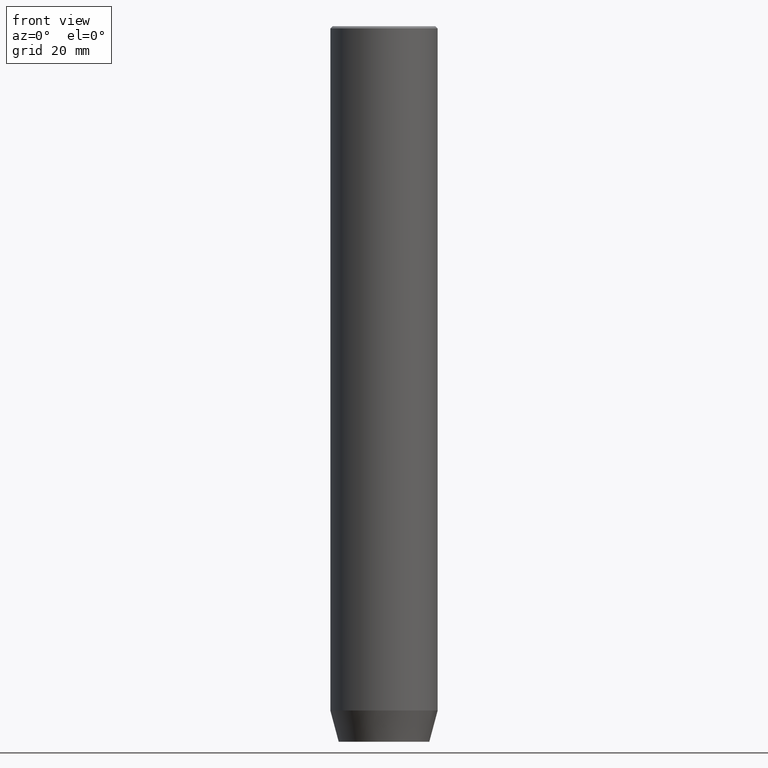
[diagram: clean part render]
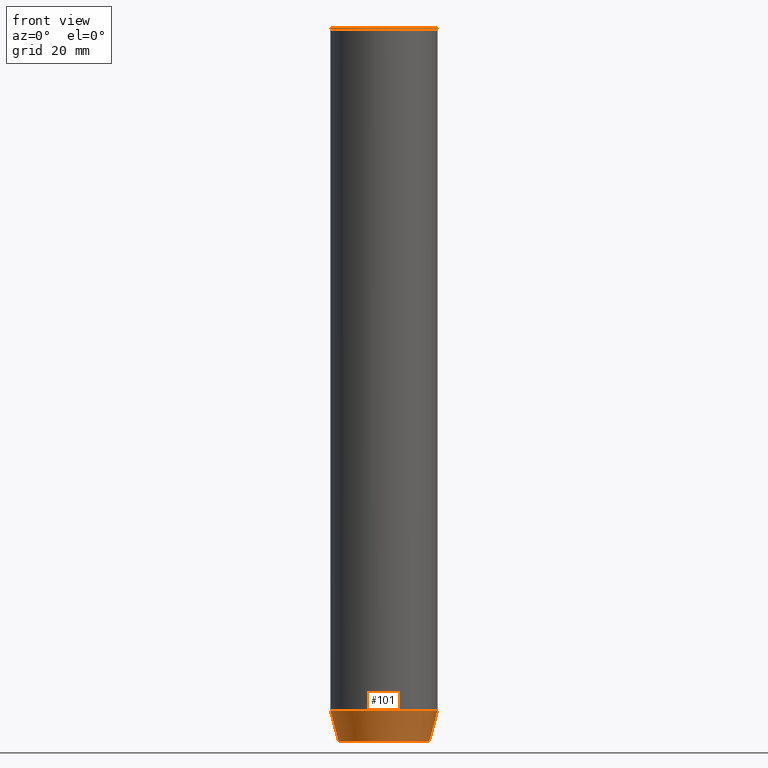
[diagram: same view with one face highlighted and labeled with its STEP entity id]
A machine part, front view. The second image highlights one B-rep face of the part: STEP entity #101.
In plain terms, the highlighted conical surface has half-angle 15 deg.
Its self-contained STEP definition (entity closure, byte-faithful):
#29 = DIRECTION ( 'NONE',  ( 0.2588190451025212391, 0.000000000000000000, 0.9659258262890680902 ) ) ;
#32 = VECTOR ( 'NONE', #29, 1000.000000000000114 ) ;
#38 = LINE ( 'NONE', #431, #445 ) ;
#45 = EDGE_LOOP ( 'NONE', ( #121, #98, #438, #160 ) ) ;
#60 = EDGE_CURVE ( 'NONE', #583, #458, #381, .T. ) ;
#96 = AXIS2_PLACEMENT_3D ( 'NONE', #116, #434, #475 ) ;
#98 = ORIENTED_EDGE ( 'NONE', *, *, #548, .T. ) ;
#101 = ADVANCED_FACE ( 'NONE', ( #104 ), #472, .T. ) ;
#104 = FACE_OUTER_BOUND ( 'NONE', #45, .T. ) ;
#112 = EDGE_CURVE ( 'NONE', #558, #458, #414, .T. ) ;
#116 = CARTESIAN_POINT ( 'NONE',  ( 0.000000000000000000, 0.000000000000000000, -160.0000000000000000 ) ) ;
#121 = ORIENTED_EDGE ( 'NONE', *, *, #214, .F. ) ;
#160 = ORIENTED_EDGE ( 'NONE', *, *, #112, .F. ) ;
#166 = DIRECTION ( 'NONE',  ( -0.000000000000000000, -0.000000000000000000, 1.000000000000000000 ) ) ;
#192 = AXIS2_PLACEMENT_3D ( 'NONE', #336, #241, #567 ) ;
#198 = VERTEX_POINT ( 'NONE', #478 ) ;
#204 = DIRECTION ( 'NONE',  ( -0.2588190451025212391, 3.169619151431771721E-17, 0.9659258262890680902 ) ) ;
#214 = EDGE_CURVE ( 'NONE', #198, #558, #38, .T. ) ;
#241 = DIRECTION ( 'NONE',  ( -0.000000000000000000, -0.000000000000000000, 1.000000000000000000 ) ) ;
#248 = CIRCLE ( 'NONE', #96, 10.12435565298212836 ) ;
#287 = CARTESIAN_POINT ( 'NONE',  ( 12.00000000000000000, 0.000000000000000000, -152.9999999999999716 ) ) ;
#295 = CARTESIAN_POINT ( 'NONE',  ( 0.000000000000000000, 0.000000000000000000, -152.9999999999999716 ) ) ;
#336 = CARTESIAN_POINT ( 'NONE',  ( 0.000000000000000000, 0.000000000000000000, -152.9999999999999716 ) ) ;
#381 = LINE ( 'NONE', #426, #32 ) ;
#414 = CIRCLE ( 'NONE', #495, 12.00000000000000000 ) ;
#426 = CARTESIAN_POINT ( 'NONE',  ( 12.00000000000000000, 0.000000000000000000, -152.9999999999999716 ) ) ;
#427 = CARTESIAN_POINT ( 'NONE',  ( -12.00000000000000000, 1.469576158976823947E-15, -152.9999999999999716 ) ) ;
#431 = CARTESIAN_POINT ( 'NONE',  ( -12.00000000000000000, 1.469576158976823947E-15, -152.9999999999999716 ) ) ;
#434 = DIRECTION ( 'NONE',  ( -0.000000000000000000, -0.000000000000000000, 1.000000000000000000 ) ) ;
#438 = ORIENTED_EDGE ( 'NONE', *, *, #60, .T. ) ;
#442 = DIRECTION ( 'NONE',  ( 1.000000000000000000, 0.000000000000000000, 0.000000000000000000 ) ) ;
#445 = VECTOR ( 'NONE', #204, 1000.000000000000114 ) ;
#458 = VERTEX_POINT ( 'NONE', #287 ) ;
#472 = CONICAL_SURFACE ( 'NONE', #192, 12.00000000000000000, 0.2617993877991499629 ) ;
#475 = DIRECTION ( 'NONE',  ( 1.000000000000000000, 0.000000000000000000, 0.000000000000000000 ) ) ;
#478 = CARTESIAN_POINT ( 'NONE',  ( -10.12435565298212836, 1.354726066681110655E-15, -160.0000000000000000 ) ) ;
#495 = AXIS2_PLACEMENT_3D ( 'NONE', #295, #166, #442 ) ;
#548 = EDGE_CURVE ( 'NONE', #198, #583, #248, .T. ) ;
#558 = VERTEX_POINT ( 'NONE', #427 ) ;
#567 = DIRECTION ( 'NONE',  ( 1.000000000000000000, 0.000000000000000000, 0.000000000000000000 ) ) ;
#568 = CARTESIAN_POINT ( 'NONE',  ( 10.12435565298212836, 0.000000000000000000, -160.0000000000000000 ) ) ;
#583 = VERTEX_POINT ( 'NONE', #568 ) ;